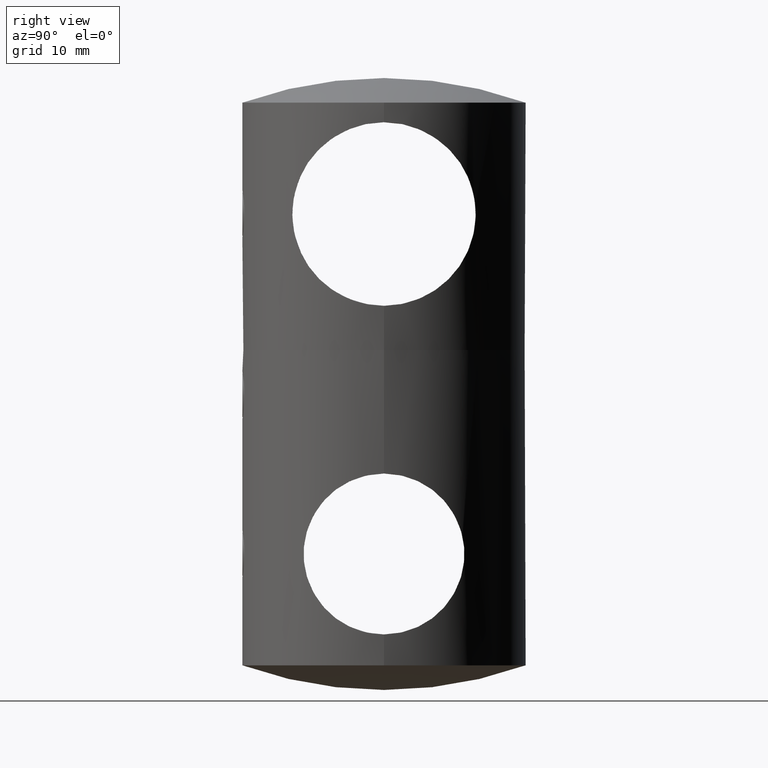
[diagram: clean part render]
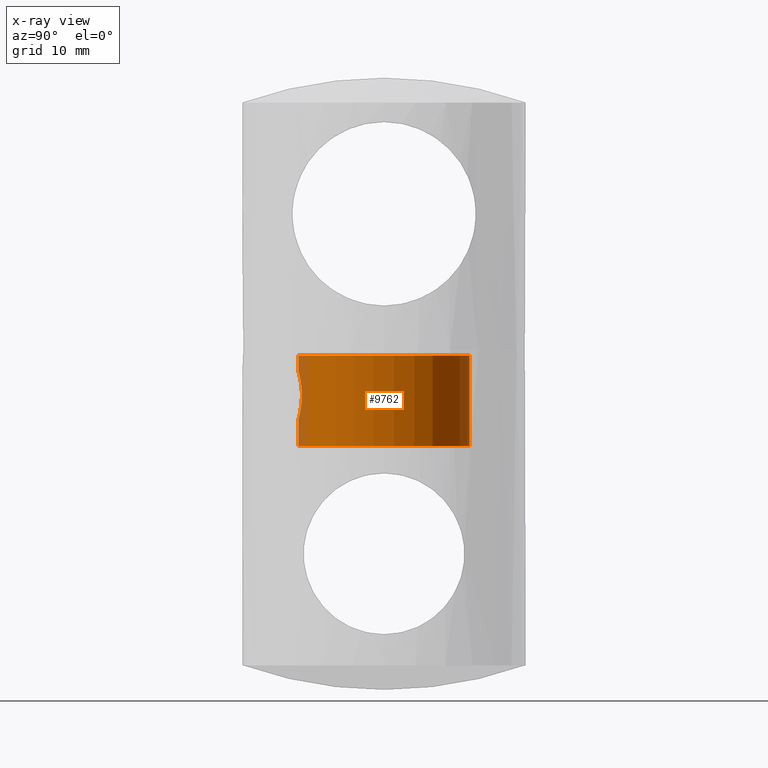
[diagram: x-ray — body ghosted, one internal face saturated and labeled with its STEP entity id]
A machine part, right view, then the same camera in x-ray: the body is ghosted and one INTERNAL B-rep face — a face not visible from any outside direction — is saturated and labeled: STEP entity #9762.
In plain terms, the highlighted cylindrical surface (partial cylindrical patch) has radius 7.55 mm, axis along (0, 0, 1).
Its self-contained STEP definition (entity closure, byte-faithful):
#570 = DIRECTION ( 'NONE',  ( -0.000000000000000000, 4.374709000422687458E-18, -1.000000000000000000 ) ) ;
#783 = VERTEX_POINT ( 'NONE', #17465 ) ;
#844 = CARTESIAN_POINT ( 'NONE',  ( -1.991587164299845059, -7.282789804908008868, -11.67989724840329657 ) ) ;
#912 = DIRECTION ( 'NONE',  ( 0.000000000000000000, 1.000000000000000000, 0.000000000000000000 ) ) ;
#1656 = VERTEX_POINT ( 'NONE', #15854 ) ;
#1661 = DIRECTION ( 'NONE',  ( 0.000000000000000000, 4.374709000422687458E-18, -1.000000000000000000 ) ) ;
#2155 = CARTESIAN_POINT ( 'NONE',  ( 2.521957637525998976E-16, -7.549999999999998046, -13.09999999999999254 ) ) ;
#2243 = CARTESIAN_POINT ( 'NONE',  ( 9.246083333562514730E-16, -7.549999999999998046, -15.00000000000000000 ) ) ;
#2342 = CARTESIAN_POINT ( 'NONE',  ( -0.9336992698976390725, -7.493131882646516750, -12.88603601046504110 ) ) ;
#2406 = CARTESIAN_POINT ( 'NONE',  ( -2.086226140382204441, -7.256097235119254307, -10.72323028202244188 ) ) ;
#2428 = VECTOR ( 'NONE', #570, 1000.000000000000000 ) ;
#2720 = CARTESIAN_POINT ( 'NONE',  ( -1.678708119171634205, -7.363672415701994822, -9.708749607459745690 ) ) ;
#2745 = ORIENTED_EDGE ( 'NONE', *, *, #7780, .T. ) ;
#3029 = CIRCLE ( 'NONE', #11955, 7.549999999999998046 ) ;
#3059 = LINE ( 'NONE', #2243, #8038 ) ;
#3632 = CARTESIAN_POINT ( 'NONE',  ( 2.521957637525998976E-16, -7.549999999999998046, -13.09999999999999254 ) ) ;
#3688 = CARTESIAN_POINT ( 'NONE',  ( -1.054069991644059678, -7.476946240329819027, -12.82145988241093626 ) ) ;
#3872 = CARTESIAN_POINT ( 'NONE',  ( -2.032260275292868013, -7.271396342366842624, -10.45331987500004978 ) ) ;
#3992 = CARTESIAN_POINT ( 'NONE',  ( -0.2768803343492294844, -7.546140640340048833, -8.913754727692300150 ) ) ;
#4185 = CARTESIAN_POINT ( 'NONE',  ( -1.992356197697642273, -7.282583466659711569, -10.32206563110843334 ) ) ;
#4188 = LINE ( 'NONE', #15369, #10929 ) ;
#4737 = CARTESIAN_POINT ( 'NONE',  ( 9.246083333562514730E-16, -7.549999999999998046, -6.500000000000000888 ) ) ;
#4992 = ORIENTED_EDGE ( 'NONE', *, *, #17052, .F. ) ;
#5121 = CARTESIAN_POINT ( 'NONE',  ( -0.6796643695733994850, -7.520430578236429575, -12.99172852168930525 ) ) ;
#5405 = VERTEX_POINT ( 'NONE', #18096 ) ;
#5551 = EDGE_LOOP ( 'NONE', ( #4992, #14627, #16781, #2745, #7817, #12501 ) ) ;
#5849 = VERTEX_POINT ( 'NONE', #16491 ) ;
#5942 = DIRECTION ( 'NONE',  ( -0.000000000000000000, 4.374709000422687458E-18, -1.000000000000000000 ) ) ;
#6630 = CARTESIAN_POINT ( 'NONE',  ( 0.000000000000000000, -3.718502650359283684E-17, -6.500000000000000888 ) ) ;
#6761 = CARTESIAN_POINT ( 'NONE',  ( -1.282097073175073598, -7.441231258090640566, -9.331202827915403120 ) ) ;
#6878 = CARTESIAN_POINT ( 'NONE',  ( -0.9320864525390359923, -7.493326538703284356, -9.113197177967551355 ) ) ;
#6946 = CARTESIAN_POINT ( 'NONE',  ( -0.1374817516697283137, -7.549999999999997158, -8.900000000000011013 ) ) ;
#7423 = DIRECTION ( 'NONE',  ( 0.000000000000000000, 1.000000000000000000, 0.000000000000000000 ) ) ;
#7768 = CARTESIAN_POINT ( 'NONE',  ( 0.000000000000000000, 7.549999999999998046, -15.00000000000000000 ) ) ;
#7780 = EDGE_CURVE ( 'NONE', #17093, #5849, #4188, .T. ) ;
#7817 = ORIENTED_EDGE ( 'NONE', *, *, #9083, .T. ) ;
#7912 = DIRECTION ( 'NONE',  ( -0.000000000000000000, 4.374709000422687458E-18, -1.000000000000000000 ) ) ;
#7983 = FACE_OUTER_BOUND ( 'NONE', #5551, .T. ) ;
#8024 = CARTESIAN_POINT ( 'NONE',  ( -1.678059632153898084, -7.363777230994588585, -12.29165666568925452 ) ) ;
#8038 = VECTOR ( 'NONE', #8995, 1000.000000000000000 ) ;
#8092 = CARTESIAN_POINT ( 'NONE',  ( -0.1394932658160058792, -7.549999999999998934, -13.09999999999998899 ) ) ;
#8153 = CARTESIAN_POINT ( 'NONE',  ( -2.086458821877004155, -7.256030768106750628, -11.27539190387924961 ) ) ;
#8207 = CARTESIAN_POINT ( 'NONE',  ( -0.5477780992829489604, -7.531323949830270870, -8.968000686584385761 ) ) ;
#8270 = CARTESIAN_POINT ( 'NONE',  ( -1.387400362529521702, -7.422090563502894867, -9.417607076148581058 ) ) ;
#8798 = CARTESIAN_POINT ( 'NONE',  ( 0.000000000000000000, -2.187354500211322929E-18, -14.50000000000000355 ) ) ;
#8995 = DIRECTION ( 'NONE',  ( -0.000000000000000000, 4.374709000422687458E-18, -1.000000000000000000 ) ) ;
#9083 = EDGE_CURVE ( 'NONE', #5849, #5405, #3029, .T. ) ;
#9300 = VERTEX_POINT ( 'NONE', #4737 ) ;
#9579 = CARTESIAN_POINT ( 'NONE',  ( -1.834197494643208248, -7.324616485014645129, -12.05850760800562504 ) ) ;
#9762 = ADVANCED_FACE ( 'NONE', ( #7983 ), #13361, .F. ) ;
#10110 = CARTESIAN_POINT ( 'NONE',  ( 0.000000000000000000, 0.000000000000000000, -15.00000000000000000 ) ) ;
#10777 = AXIS2_PLACEMENT_3D ( 'NONE', #6630, #7912, #912 ) ;
#10929 = VECTOR ( 'NONE', #11181, 1000.000000000000000 ) ;
#10971 = CARTESIAN_POINT ( 'NONE',  ( -0.2765217343159760977, -7.546140050643872499, -13.08624038847255733 ) ) ;
#11039 = CARTESIAN_POINT ( 'NONE',  ( -2.100060358447454423, -7.252051192238837984, -10.86318409228335469 ) ) ;
#11181 = DIRECTION ( 'NONE',  ( -0.000000000000000000, 4.374709000422687458E-18, -1.000000000000000000 ) ) ;
#11290 = CARTESIAN_POINT ( 'NONE',  ( -0.6787637920213023257, -7.520505799830396576, -9.007993534428855753 ) ) ;
#11955 = AXIS2_PLACEMENT_3D ( 'NONE', #8798, #1661, #14479 ) ;
#12340 = CARTESIAN_POINT ( 'NONE',  ( -1.281847231893817440, -7.441280555264184748, -12.66902586097492822 ) ) ;
#12501 = ORIENTED_EDGE ( 'NONE', *, *, #14194, .F. ) ;
#13047 = B_SPLINE_CURVE_WITH_KNOTS ( 'NONE', 3,
 ( #3632, #8092, #10971, #16721, #5121, #2342, #3688, #12340, #13842, #8024, #9579, #844, #15296, #8153, #18165, #11039, #2406, #3872, #4185, #14025, #2720, #8270, #6761, #16784, #6878, #11290, #8207, #3992, #6946, #18225 ),
 .UNSPECIFIED., .F., .F.,
 ( 4, 2, 2, 2, 2, 2, 2, 2, 2, 2, 2, 2, 2, 2, 4 ),
 ( 5.253431386272758781E-19, 0.0004123904907832351787, 0.0008247809815664698153, 0.001237171472349704506, 0.001649561963132938980, 0.002474342944699409012, 0.002886733435482643703, 0.003299123926265878394, 0.003711514417049113085, 0.004123904907832347776, 0.004948685889398817157, 0.005361076380182054450, 0.005773466870965290876, 0.006185857361748529036, 0.006598247852531765462 ),
 .UNSPECIFIED. ) ;
#13361 = CYLINDRICAL_SURFACE ( 'NONE', #17713, 7.549999999999998046 ) ;
#13842 = CARTESIAN_POINT ( 'NONE',  ( -1.389119376509555526, -7.421758360860341242, -12.58079493470110144 ) ) ;
#13856 = CIRCLE ( 'NONE', #10777, 7.549999999999998046 ) ;
#14025 = CARTESIAN_POINT ( 'NONE',  ( -1.833416258675118815, -7.324828017906233057, -9.939388039601496416 ) ) ;
#14194 = EDGE_CURVE ( 'NONE', #1656, #5405, #17027, .T. ) ;
#14479 = DIRECTION ( 'NONE',  ( 0.000000000000000000, 1.000000000000000000, 0.000000000000000000 ) ) ;
#14627 = ORIENTED_EDGE ( 'NONE', *, *, #16386, .T. ) ;
#15296 = CARTESIAN_POINT ( 'NONE',  ( -2.032276555679644048, -7.271392227375382156, -11.54681177506112988 ) ) ;
#15369 = CARTESIAN_POINT ( 'NONE',  ( 9.246083333562514730E-16, -7.549999999999998046, -15.00000000000000000 ) ) ;
#15854 = CARTESIAN_POINT ( 'NONE',  ( 0.000000000000000000, 7.549999999999998046, -6.500000000000000888 ) ) ;
#16386 = EDGE_CURVE ( 'NONE', #9300, #783, #3059, .T. ) ;
#16491 = CARTESIAN_POINT ( 'NONE',  ( 9.246083333562514730E-16, -7.549999999999998046, -14.50000000000000355 ) ) ;
#16721 = CARTESIAN_POINT ( 'NONE',  ( -0.5458910976443231977, -7.531447194463577688, -13.03245323133299038 ) ) ;
#16781 = ORIENTED_EDGE ( 'NONE', *, *, #17132, .F. ) ;
#16784 = CARTESIAN_POINT ( 'NONE',  ( -1.055122125670583166, -7.476791614145047227, -9.179183093630216561 ) ) ;
#17027 = LINE ( 'NONE', #7768, #2428 ) ;
#17052 = EDGE_CURVE ( 'NONE', #9300, #1656, #13856, .T. ) ;
#17093 = VERTEX_POINT ( 'NONE', #2155 ) ;
#17132 = EDGE_CURVE ( 'NONE', #17093, #783, #13047, .T. ) ;
#17465 = CARTESIAN_POINT ( 'NONE',  ( 2.571828362210401787E-16, -7.549999999999998046, -8.900000000000014566 ) ) ;
#17713 = AXIS2_PLACEMENT_3D ( 'NONE', #10110, #5942, #7423 ) ;
#18096 = CARTESIAN_POINT ( 'NONE',  ( 0.000000000000000000, 7.549999999999998046, -14.50000000000000355 ) ) ;
#18165 = CARTESIAN_POINT ( 'NONE',  ( -2.099939235580445374, -7.252086266092331535, -11.13866257100094792 ) ) ;
#18225 = CARTESIAN_POINT ( 'NONE',  ( 2.571828362210401787E-16, -7.549999999999998046, -8.900000000000014566 ) ) ;